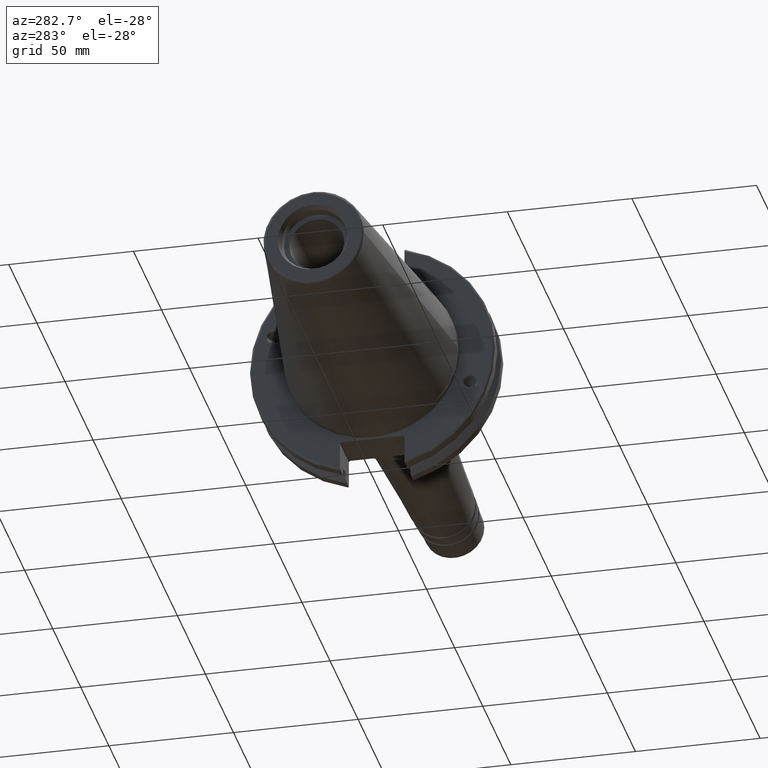
[diagram: clean part render]
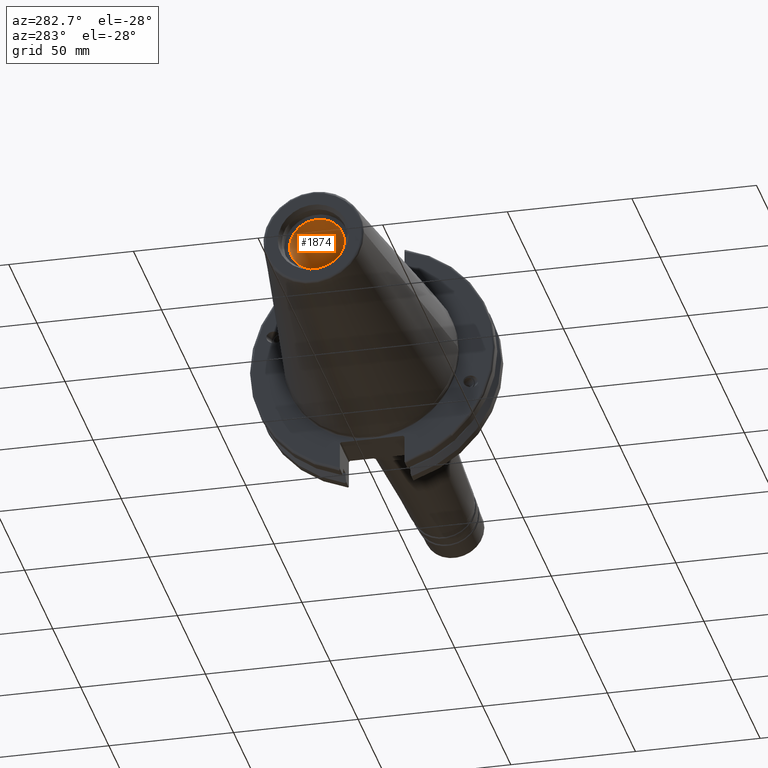
[diagram: same view with one face highlighted and labeled with its STEP entity id]
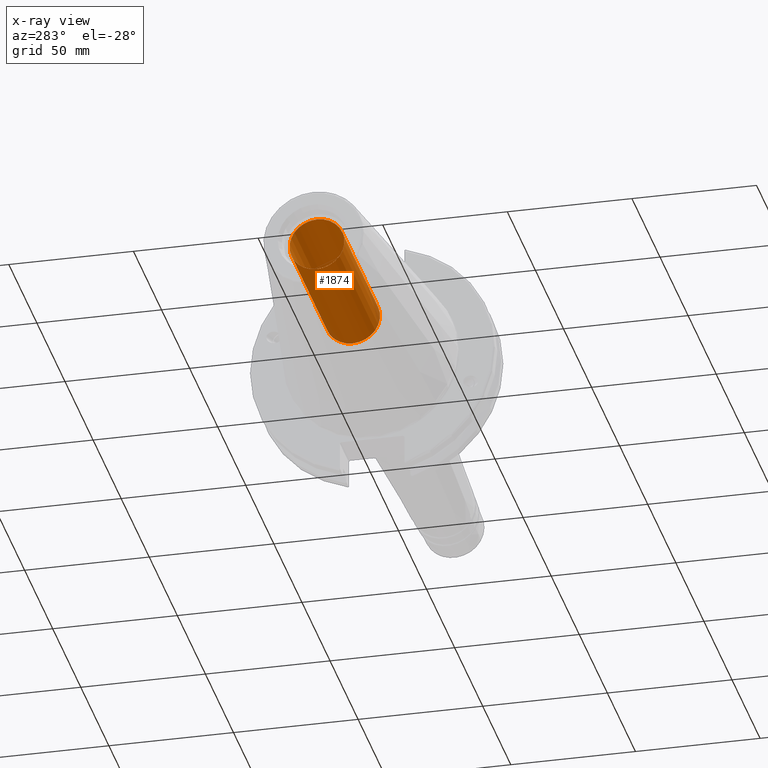
[diagram: x-ray of the same camera — body ghosted, the highlighted face saturated]
A machine part, auxiliary view. The second image highlights one B-rep face of the part: STEP entity #1874.
The next image is the same camera in x-ray: the body ghosted, the highlighted face saturated — about 4% of this face is hidden behind the body in this view.
In plain terms, the highlighted cylindrical surface (bore or boss wall) has radius 10.9855 mm, axis along (-1, 0, 0).
Its self-contained STEP definition (entity closure, byte-faithful):
#206=LINE('',#3499,#309);
#309=VECTOR('',#2559,10.9855);
#375=CYLINDRICAL_SURFACE('',#2103,10.9855);
#445=FACE_OUTER_BOUND('',#566,.T.);
#566=EDGE_LOOP('',(#1547,#1548,#1549,#1550));
#715=CIRCLE('',#2102,10.9855);
#716=CIRCLE('',#2104,10.9855);
#879=VERTEX_POINT('',#3493);
#880=VERTEX_POINT('',#3497);
#1119=EDGE_CURVE('',#879,#879,#715,.T.);
#1121=EDGE_CURVE('',#880,#880,#716,.T.);
#1122=EDGE_CURVE('',#880,#879,#206,.T.);
#1547=ORIENTED_EDGE('',*,*,#1121,.F.);
#1548=ORIENTED_EDGE('',*,*,#1122,.T.);
#1549=ORIENTED_EDGE('',*,*,#1119,.F.);
#1550=ORIENTED_EDGE('',*,*,#1122,.F.);
#1874=ADVANCED_FACE('',(#445),#375,.F.);
#2102=AXIS2_PLACEMENT_3D('',#3494,#2552,#2553);
#2103=AXIS2_PLACEMENT_3D('',#3496,#2555,#2556);
#2104=AXIS2_PLACEMENT_3D('',#3498,#2557,#2558);
#2552=DIRECTION('center_axis',(-1.,0.,0.));
#2553=DIRECTION('ref_axis',(0.,0.,1.));
#2555=DIRECTION('center_axis',(-1.,0.,0.));
#2556=DIRECTION('ref_axis',(0.,0.,1.));
#2557=DIRECTION('center_axis',(1.,0.,0.));
#2558=DIRECTION('ref_axis',(0.,0.,1.));
#2559=DIRECTION('',(1.,0.,0.));
#3493=CARTESIAN_POINT('',(-31.6,-1.34533574120333E-15,-10.9855));
#3494=CARTESIAN_POINT('Origin',(-31.6,0.,0.));
#3496=CARTESIAN_POINT('Origin',(-66.6,0.,0.));
#3497=CARTESIAN_POINT('',(-95.25,1.34533574120333E-15,-10.9855));
#3498=CARTESIAN_POINT('Origin',(-95.25,0.,0.));
#3499=CARTESIAN_POINT('',(-66.6,-1.34533574120333E-15,-10.9855));